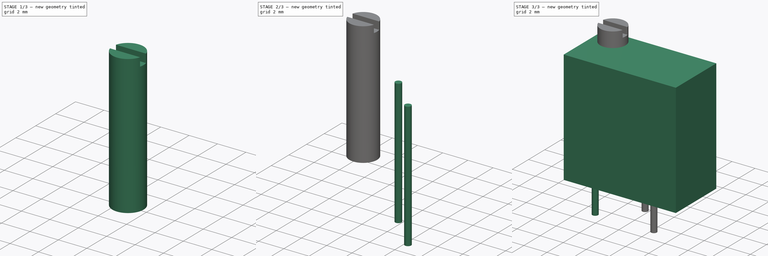
[diagram: build sequence overview — one tinted view per stage of 3, left to right]
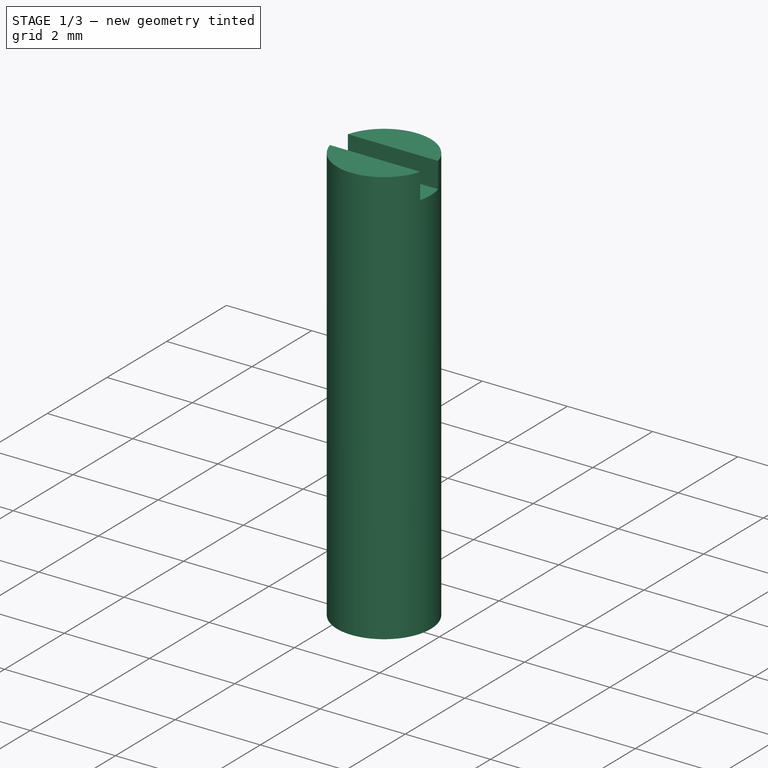
[diagram: stage 1 of 3 — iso view after this stage's code; geometry added in this stage tinted green]
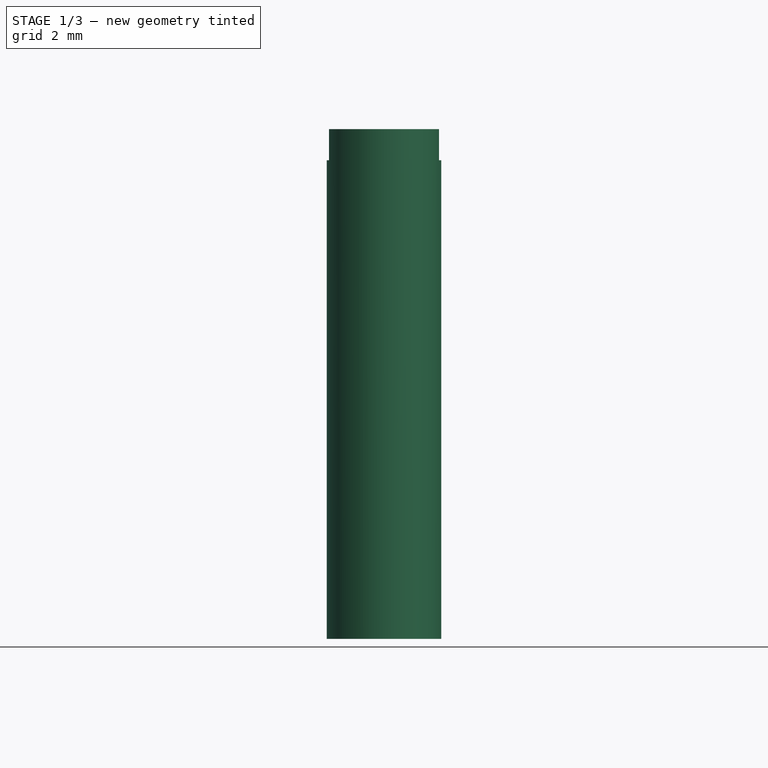
[diagram: stage 1 of 3 — front view after this stage's code; geometry added in this stage tinted green]
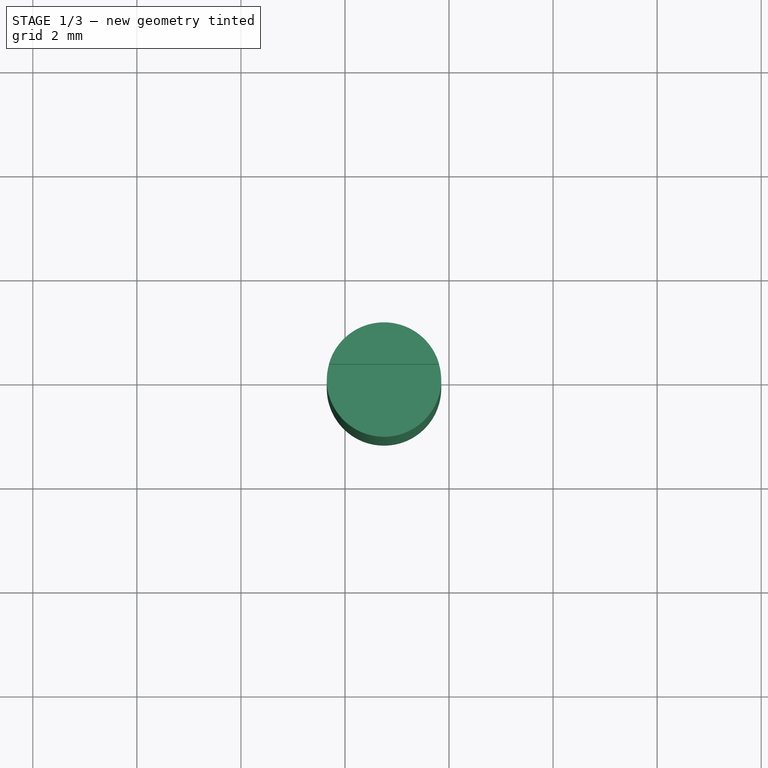
[diagram: stage 1 of 3 — top view after this stage's code; geometry added in this stage tinted green]
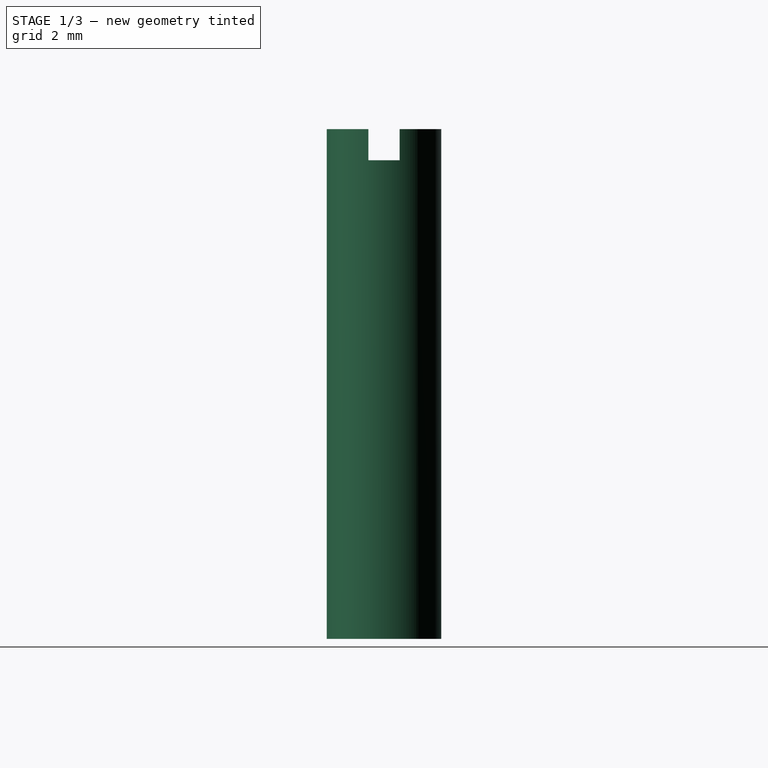
[diagram: stage 1 of 3 — right view after this stage's code; geometry added in this stage tinted green]
FCSTD DOCUMENT  (FreeCAD 0.16R6433 (Git))
Label: Vishay 64Y
License: All rights reserved
LicenseURL: http://en.wikipedia.org/wiki/All_rights_reserved
objects: Part::Feature×5, Part::Cylinder×4, App::DocumentObjectGroup×1, Part::Box×1, Sketcher::SketchObject×1, PartDesign::Pocket×1, Part::Part2DObjectPython×1
note: 14 computed .brp shape members not serialized (recipe doc carries the construction recipe); baked Part::Feature solids carry a one-line shape summary decoded from their .brp

FEATURE [Part::Cylinder] Cylinder003  label="Cilindro003"
  Angle = 360
  Height = 9.8
  Placement = pos=(-3.25,1.93,1.3) rot=(0,0,1;0rad)
  Radius = 1.1
FEATURE [Sketcher::SketchObject] Sketch
  ExternalGeometry = -> [Cylinder003]
  Placement = pos=(-3.25,1.93,11.1) rot=(0,0,1;0rad)
  Support = -> Cylinder003 [Face2]
  sketch-geometry (4):
    g0: LineSegment StartX=-1.1 StartY=0.3 StartZ=0 EndX=1.1 EndY=0.3 EndZ=0
    g1: LineSegment StartX=1.1 StartY=0.3 StartZ=0 EndX=1.1 EndY=-0.3 EndZ=0
    g2: LineSegment StartX=1.1 StartY=-0.3 StartZ=0 EndX=-1.1 EndY=-0.3 EndZ=0
    g3: LineSegment StartX=-1.1 StartY=-0.3 StartZ=0 EndX=-1.1 EndY=0.3 EndZ=0
  constraints (12):
    c: Coincident(g0,g1)
    c: Coincident(g1,g2)
    c: Coincident(g2,g3)
    c: Coincident(g3,g0)
    c: Horizontal(g0)
    c: Horizontal(g2)
    c: Vertical(g1)
    c: Vertical(g3)
    c: Symmetric(g0,g0,g-2)
    c: Symmetric(g2,g0,g-1)
    c: Tangent(g3,g-3)
    c: DistanceY(g1) = -0.6
FEATURE [PartDesign::Pocket] Pocket
  Length = 0.6
  Placement = pos=(-3.25,1.93,1.3) rot=(0,0,1;0rad)
  Sketch = -> Sketch
  Type = 0
FEATURE [Part::Part2DObjectPython] ShapeString  # Draft 2D object (typed FeaturePython)
  FontFile = <userpath>/Documentos/KiCad/modelos/arial.ttf
  Placement = pos=(-2.5,-1.86,6) rot=(1,0,0;1.5708rad)
  Size = 2
  String = 64 Y
  Tracking = 0
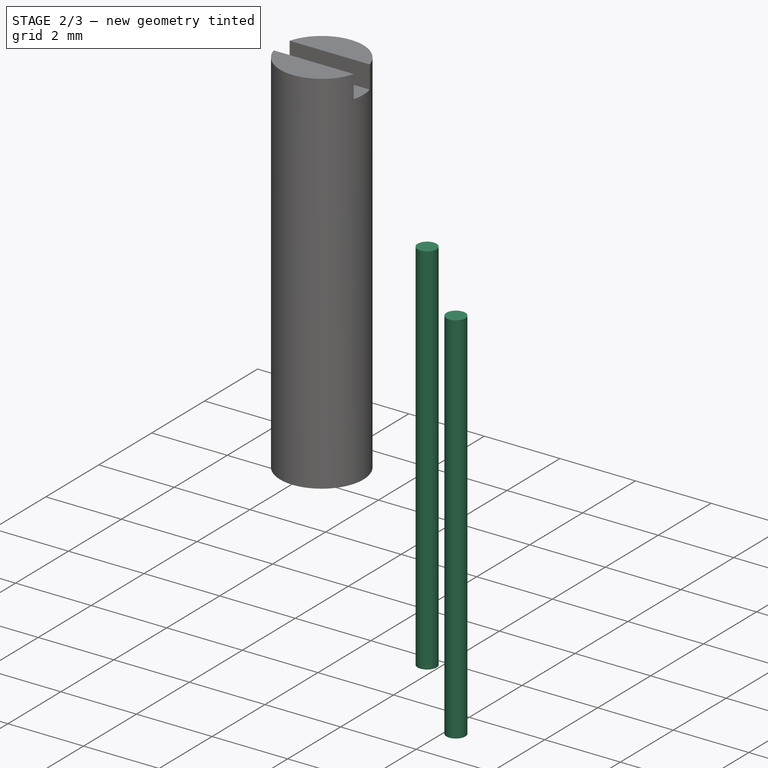
[diagram: stage 2 of 3 — iso view after this stage's code; geometry added in this stage tinted green]
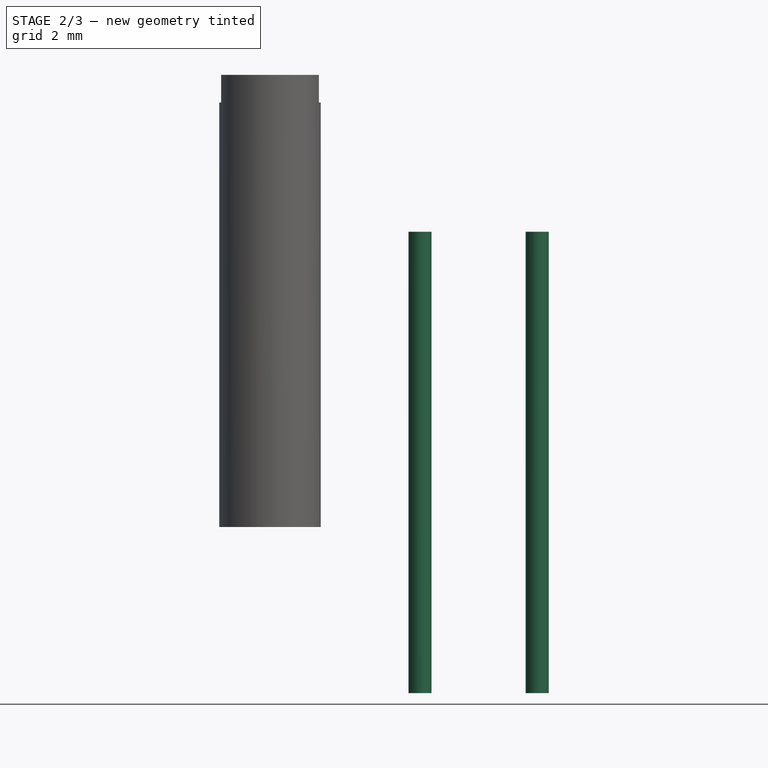
[diagram: stage 2 of 3 — front view after this stage's code; geometry added in this stage tinted green]
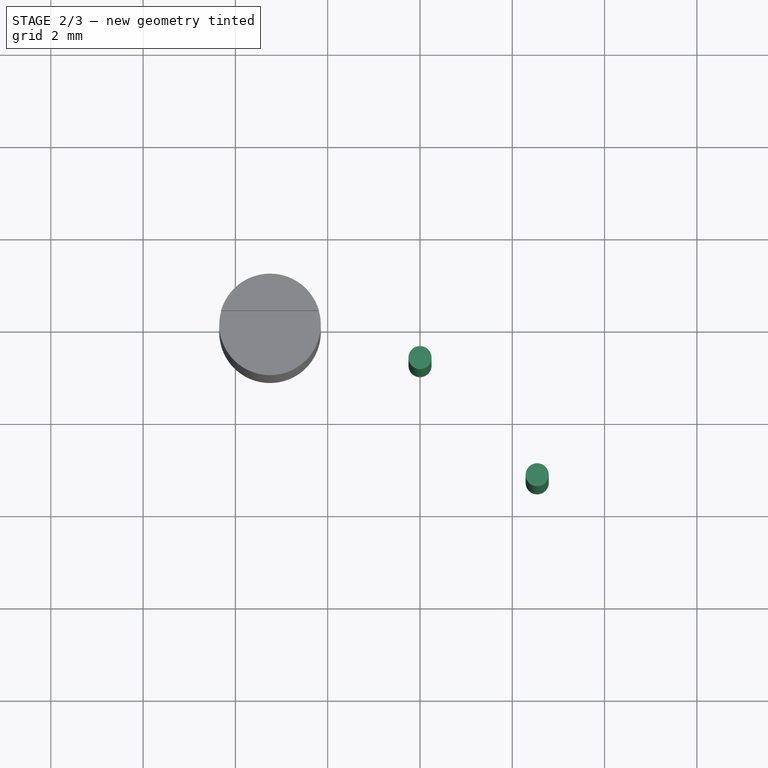
[diagram: stage 2 of 3 — top view after this stage's code; geometry added in this stage tinted green]
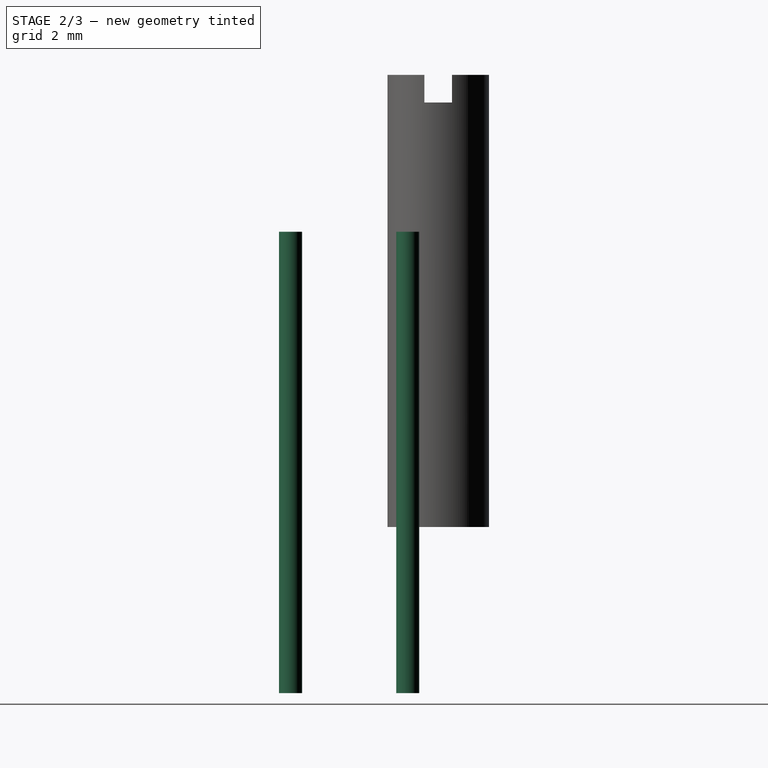
[diagram: stage 2 of 3 — right view after this stage's code; geometry added in this stage tinted green]
FEATURE [Part::Cylinder] Cylinder001  label="Cilindro001"
  Angle = 360
  Height = 10
  Placement = pos=(2.54,-1.27,-2.3) rot=(0,0,1;0rad)
  Radius = 0.25
FEATURE [Part::Cylinder] Cylinder002  label="Cilindro002"
  Angle = 360
  Height = 10
  Placement = pos=(0,1.27,-2.3) rot=(0,0,1;0rad)
  Radius = 0.25
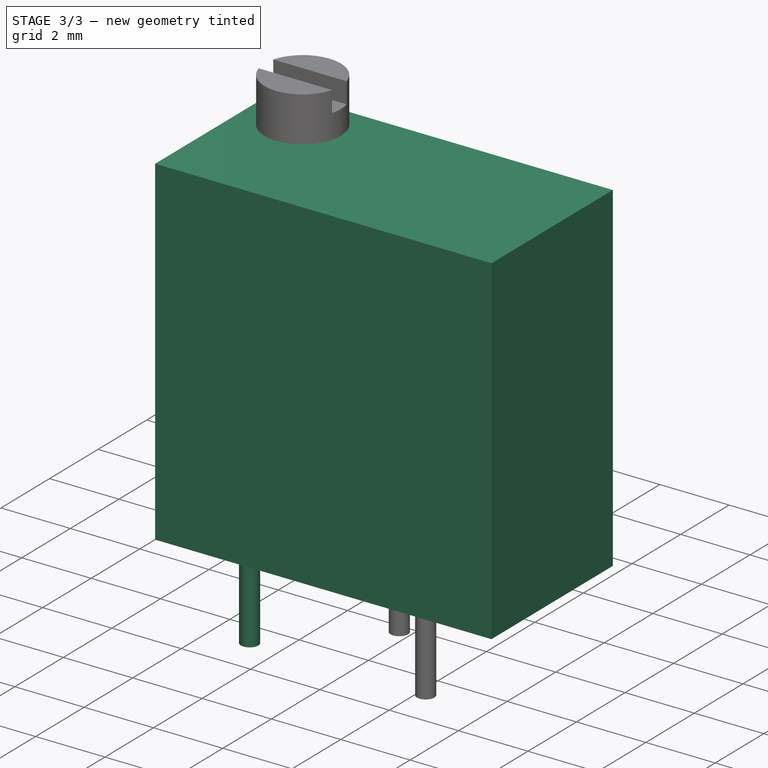
[diagram: stage 3 of 3 — iso view after this stage's code; geometry added in this stage tinted green]
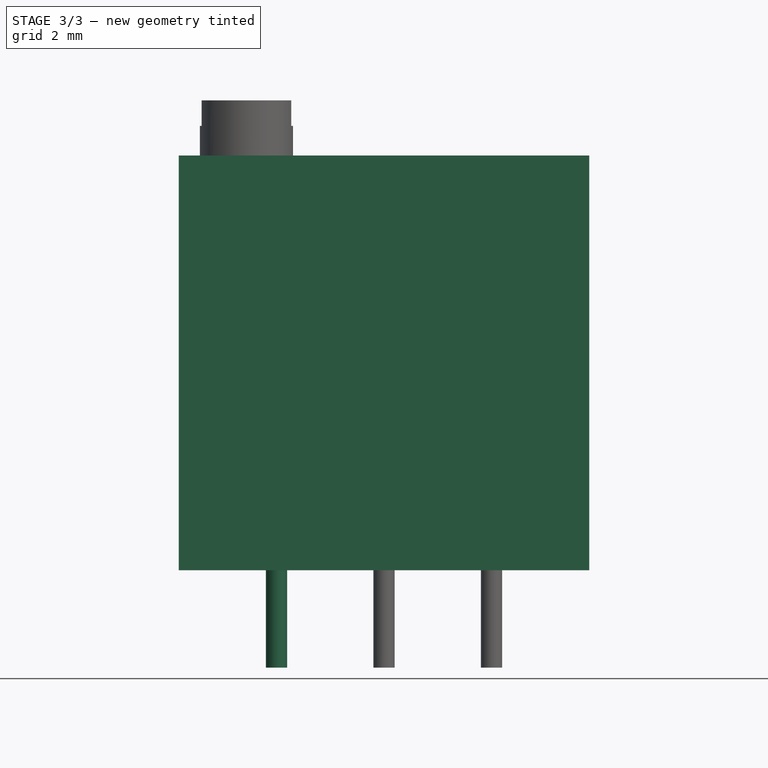
[diagram: stage 3 of 3 — front view after this stage's code; geometry added in this stage tinted green]
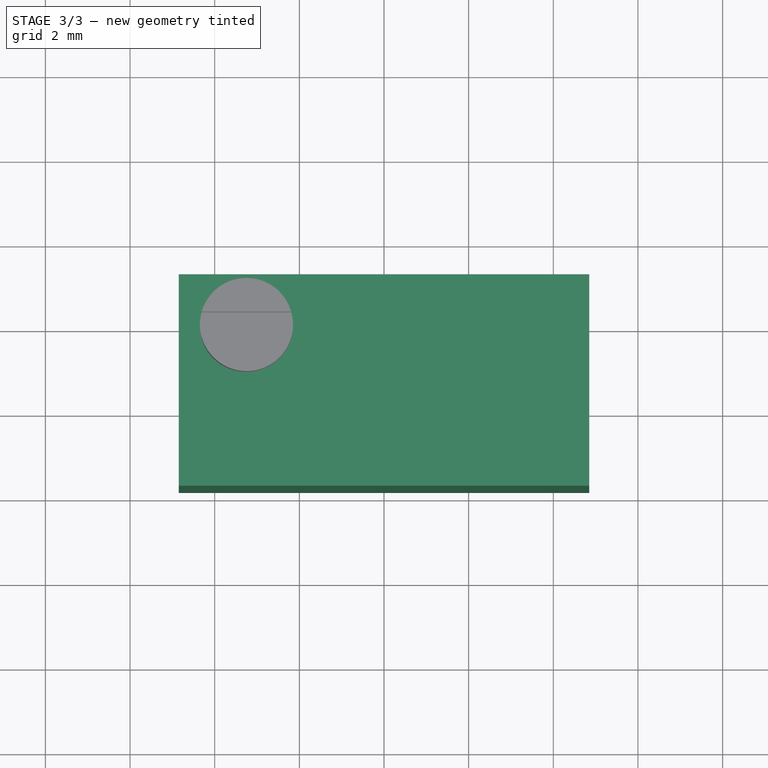
[diagram: stage 3 of 3 — top view after this stage's code; geometry added in this stage tinted green]
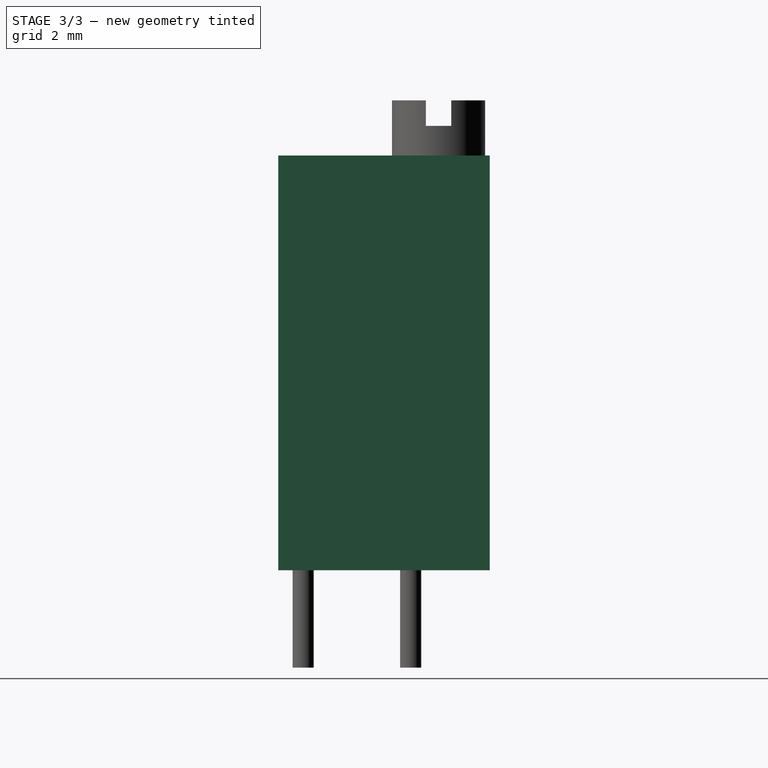
[diagram: stage 3 of 3 — right view after this stage's code; geometry added in this stage tinted green]
FEATURE [Part::Feature] Shape  label="FrontSilk"
  shape: bbox 9.852 x 5.152 x 0.01 mm, 8 faces, 0 solids (baked)
FEATURE [Part::Feature] Shape001  label="TopPads"
  shape: bbox 6.48 x 3.94 x 0.01 mm, 30 faces, 3 solids (baked)
FEATURE [Part::Feature] Shape002  label="BotPads"
  shape: bbox 6.48 x 3.94 x 0.01 mm, 30 faces, 3 solids (baked)
FEATURE [Part::Feature] Shape004  label="PTHs"
  shape: bbox 5.79 x 3.25 x 1.58 mm, 30 faces (baked)
FEATURE [Part::Feature] Shape005002  label="Pcb"
  shape: bbox 15.76 x 8.282 x 1.58 mm, 18 faces (baked)
FEATURE [App::DocumentObjectGroup] _Vishay_64Y__fp
  Group = -> [Shape,Shape001,Shape002,Shape004,Shape005002]
FEATURE [Part::Box] Box  label="Cubo"
  Height = 9.8
  Length = 9.7
  Placement = pos=(-4.85,-1.86,0) rot=(0,0,1;0rad)
  Width = 5
FEATURE [Part::Cylinder] Cylinder  label="Cilindro"
  Angle = 360
  Height = 10
  Placement = pos=(-2.54,-1.27,-2.3) rot=(0,0,1;0rad)
  Radius = 0.25
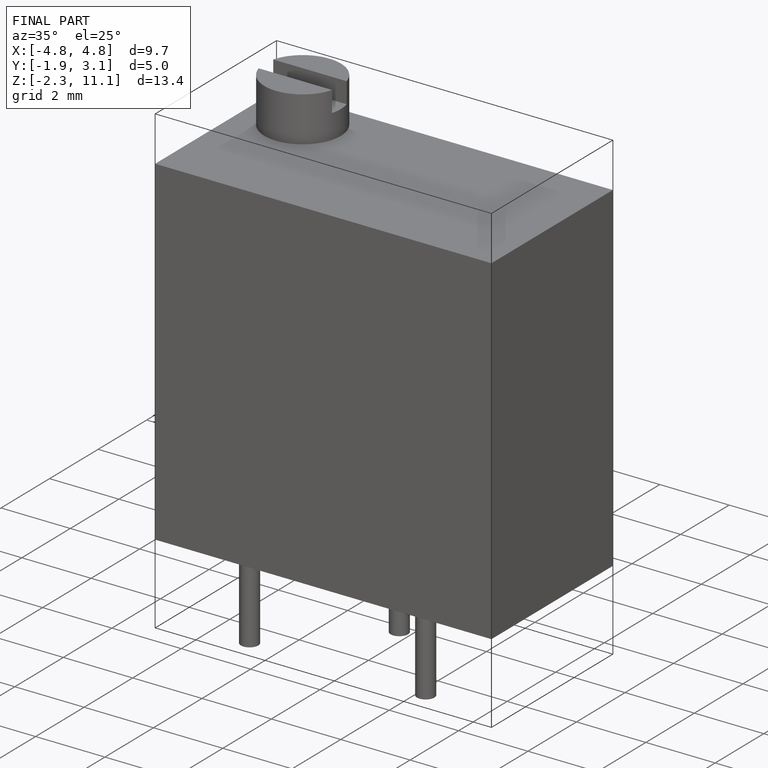
[diagram: finished part — iso view with bounding-box wireframe]
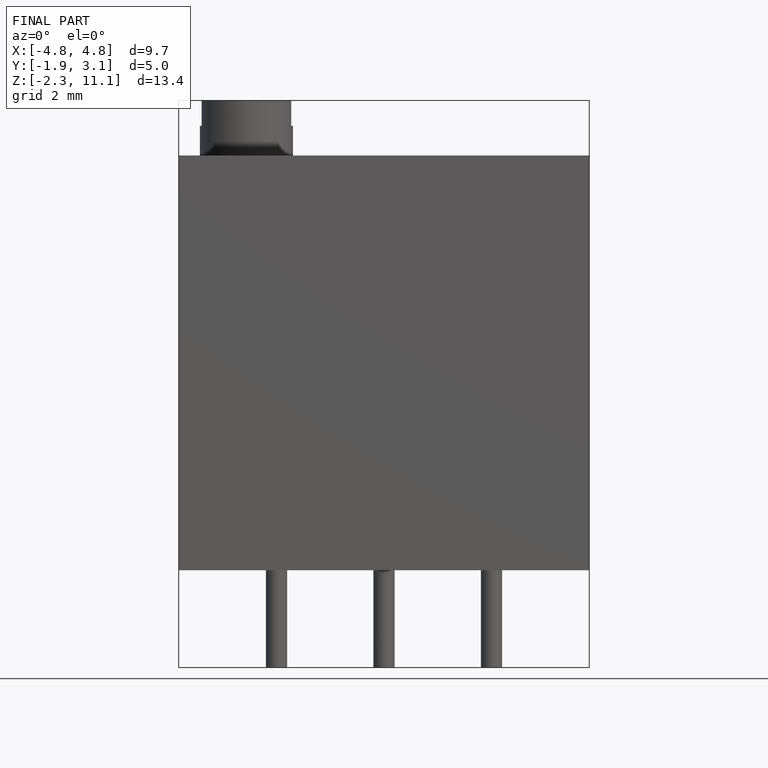
[diagram: finished part — front view with bounding-box wireframe]
